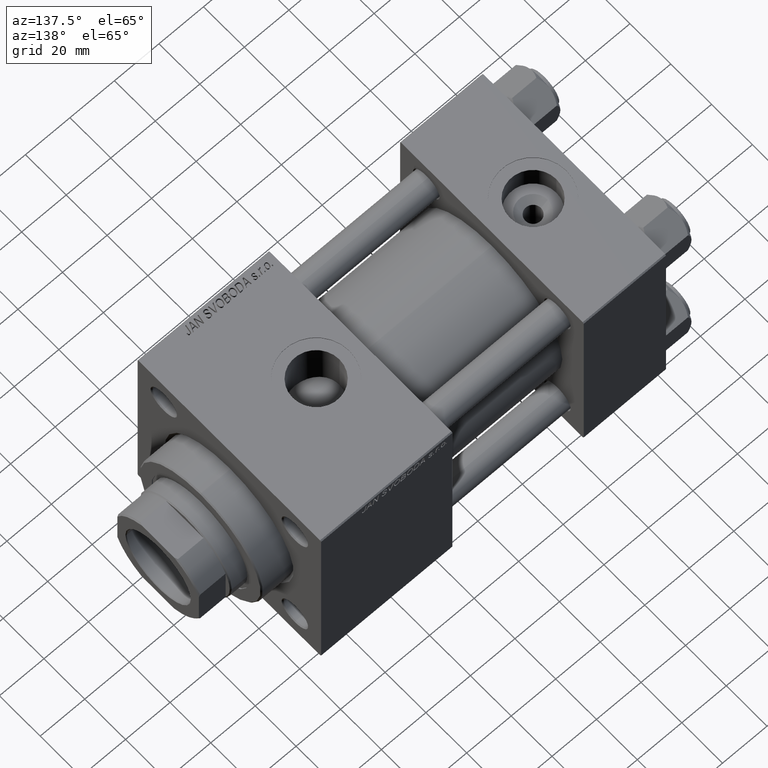
[diagram: clean part render]
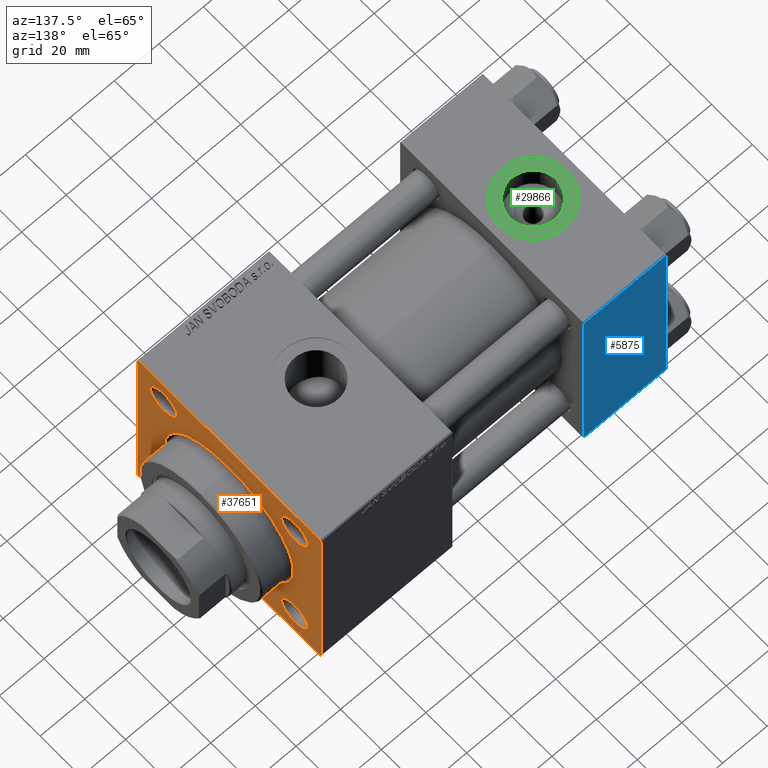
[diagram: same view with three faces highlighted in distinct colors, each labeled with its STEP entity id]
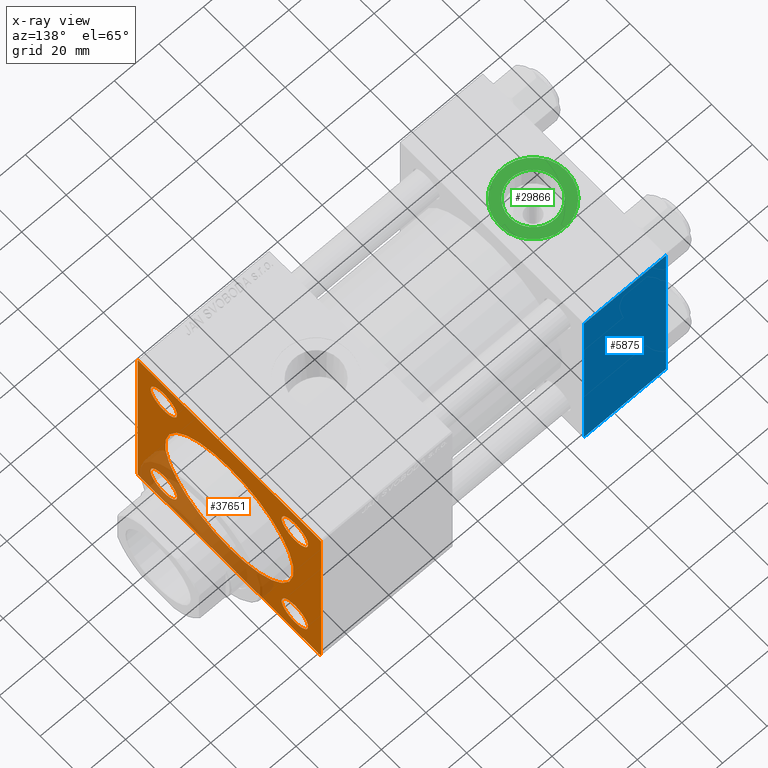
[diagram: x-ray of the same camera — body ghosted, the three highlighted faces saturated]
A machine part, auxiliary view with three faces highlighted in distinct colors.
The next image is the same camera in x-ray (body ghosted, the three faces saturated) — at least one of them is partly hidden behind the body in this view.
Their STEP definitions:

[orange] entity #37651 — the highlighted planar face has unit normal (-1, 0, 0).
#524 = VERTEX_POINT ( 'NONE', #20407 ) ;
#1508 = AXIS2_PLACEMENT_3D ( 'NONE', #2533, #30110, #5719 ) ;
#1572 = VECTOR ( 'NONE', #47039, 1000.000000000000114 ) ;
#1975 = DIRECTION ( 'NONE',  ( 0.000000000000000000, 0.000000000000000000, 1.000000000000000000 ) ) ;
#1985 = EDGE_CURVE ( 'NONE', #30434, #19574, #22128, .T. ) ;
#2533 = CARTESIAN_POINT ( 'NONE',  ( 155.0000000000000000, -32.14999999999999147, 32.14999999999999147 ) ) ;
#2999 = VERTEX_POINT ( 'NONE', #42919 ) ;
#3445 = VERTEX_POINT ( 'NONE', #41437 ) ;
#3578 = VERTEX_POINT ( 'NONE', #4168 ) ;
#3692 = CIRCLE ( 'NONE', #16276, 6.500000000000026645 ) ;
#3714 = EDGE_LOOP ( 'NONE', ( #12488, #46523 ) ) ;
#4168 = CARTESIAN_POINT ( 'NONE',  ( 155.0000000000000000, 44.49999999999998579, 45.00000000000000000 ) ) ;
#4630 = CARTESIAN_POINT ( 'NONE',  ( 155.0000000000000000, 32.14999999999999147, 32.15000000000000568 ) ) ;
#4785 = ORIENTED_EDGE ( 'NONE', *, *, #48766, .T. ) ;
#4864 = ORIENTED_EDGE ( 'NONE', *, *, #29685, .T. ) ;
#5298 = DIRECTION ( 'NONE',  ( 0.000000000000000000, -1.000000000000000000, 0.000000000000000000 ) ) ;
#5435 = AXIS2_PLACEMENT_3D ( 'NONE', #41424, #5501, #21494 ) ;
#5486 = DIRECTION ( 'NONE',  ( 0.000000000000000000, -1.000000000000000000, -1.541976423090495140E-16 ) ) ;
#5501 = DIRECTION ( 'NONE',  ( -1.000000000000000000, -0.000000000000000000, -0.000000000000000000 ) ) ;
#5719 = DIRECTION ( 'NONE',  ( 0.000000000000000000, 0.000000000000000000, 1.000000000000000000 ) ) ;
#6261 = CARTESIAN_POINT ( 'NONE',  ( 155.0000000000000000, 0.000000000000000000, -31.50000000000000000 ) ) ;
#6584 = CARTESIAN_POINT ( 'NONE',  ( 155.0000000000000000, 0.000000000000000000, 0.000000000000000000 ) ) ;
#6684 = ORIENTED_EDGE ( 'NONE', *, *, #50367, .T. ) ;
#7020 = LINE ( 'NONE', #19332, #33350 ) ;
#7304 = FACE_BOUND ( 'NONE', #3714, .T. ) ;
#7570 = PLANE ( 'NONE',  #23107 ) ;
#7697 = CARTESIAN_POINT ( 'NONE',  ( 155.0000000000000000, -32.14999999999999147, 25.64999999999995595 ) ) ;
#9075 = EDGE_CURVE ( 'NONE', #25834, #29998, #28676, .T. ) ;
#9602 = CARTESIAN_POINT ( 'NONE',  ( 155.0000000000000000, 32.14999999999999147, 32.15000000000000568 ) ) ;
#9913 = DIRECTION ( 'NONE',  ( 0.000000000000000000, 0.7071067811865524577, -0.7071067811865426878 ) ) ;
#10285 = CARTESIAN_POINT ( 'NONE',  ( 155.0000000000000000, -32.15000000000001279, -32.15000000000000568 ) ) ;
#10684 = DIRECTION ( 'NONE',  ( 0.000000000000000000, 0.000000000000000000, 1.000000000000000000 ) ) ;
#12183 = VERTEX_POINT ( 'NONE', #7697 ) ;
#12300 = ORIENTED_EDGE ( 'NONE', *, *, #34011, .T. ) ;
#12436 = LINE ( 'NONE', #24751, #46487 ) ;
#12467 = VECTOR ( 'NONE', #9913, 1000.000000000000000 ) ;
#12488 = ORIENTED_EDGE ( 'NONE', *, *, #40520, .T. ) ;
#13317 = ORIENTED_EDGE ( 'NONE', *, *, #38251, .F. ) ;
#13422 = CARTESIAN_POINT ( 'NONE',  ( 155.0000000000000000, 45.00000000000001421, -45.00000000000000000 ) ) ;
#13500 = DIRECTION ( 'NONE',  ( 0.000000000000000000, 0.000000000000000000, -1.000000000000000000 ) ) ;
#13641 = ORIENTED_EDGE ( 'NONE', *, *, #13814, .T. ) ;
#13814 = EDGE_CURVE ( 'NONE', #33957, #49076, #38903, .T. ) ;
#14200 = ORIENTED_EDGE ( 'NONE', *, *, #20519, .T. ) ;
#14408 = EDGE_LOOP ( 'NONE', ( #4864, #46954 ) ) ;
#14581 = EDGE_CURVE ( 'NONE', #34700, #31970, #32632, .T. ) ;
#14985 = ORIENTED_EDGE ( 'NONE', *, *, #14581, .T. ) ;
#15615 = AXIS2_PLACEMENT_3D ( 'NONE', #50217, #33729, #1975 ) ;
#16194 = VERTEX_POINT ( 'NONE', #35738 ) ;
#16276 = AXIS2_PLACEMENT_3D ( 'NONE', #9602, #37396, #17472 ) ;
#16338 = CARTESIAN_POINT ( 'NONE',  ( 155.0000000000000000, 45.00000000000001421, 44.49999999999997158 ) ) ;
#17039 = LINE ( 'NONE', #33033, #18112 ) ;
#17263 = CIRCLE ( 'NONE', #23101, 6.500000000000033751 ) ;
#17472 = DIRECTION ( 'NONE',  ( 0.000000000000000000, 0.000000000000000000, 1.000000000000000000 ) ) ;
#17790 = ORIENTED_EDGE ( 'NONE', *, *, #1985, .F. ) ;
#18112 = VECTOR ( 'NONE', #5486, 1000.000000000000000 ) ;
#18785 = CARTESIAN_POINT ( 'NONE',  ( 155.0000000000000000, 32.14999999999999147, -25.64999999999997016 ) ) ;
#18918 = CARTESIAN_POINT ( 'NONE',  ( 155.0000000000000000, -32.15000000000001279, -25.64999999999997016 ) ) ;
#18983 = CARTESIAN_POINT ( 'NONE',  ( 155.0000000000000000, -45.00000000000000000, 44.49999999999995737 ) ) ;
#19332 = CARTESIAN_POINT ( 'NONE',  ( 155.0000000000000000, 44.49999999999998579, 45.00000000000000000 ) ) ;
#19365 = DIRECTION ( 'NONE',  ( -0.000000000000000000, 0.000000000000000000, 1.000000000000000000 ) ) ;
#19446 = DIRECTION ( 'NONE',  ( 0.000000000000000000, 0.000000000000000000, 1.000000000000000000 ) ) ;
#19574 = VERTEX_POINT ( 'NONE', #32068 ) ;
#19641 = CIRCLE ( 'NONE', #40555, 31.50000000000000000 ) ;
#20049 = DIRECTION ( 'NONE',  ( -0.000000000000000000, 0.7071067811865474617, 0.7071067811865474617 ) ) ;
#20055 = CARTESIAN_POINT ( 'NONE',  ( 155.0000000000000000, -44.99999999999999289, -44.49999999999991473 ) ) ;
#20407 = CARTESIAN_POINT ( 'NONE',  ( 155.0000000000000000, -32.14999999999999147, 38.65000000000002700 ) ) ;
#20519 = EDGE_CURVE ( 'NONE', #2999, #42533, #34379, .T. ) ;
#21033 = VECTOR ( 'NONE', #13500, 1000.000000000000000 ) ;
#21494 = DIRECTION ( 'NONE',  ( 0.000000000000000000, 0.000000000000000000, 1.000000000000000000 ) ) ;
#22128 = LINE ( 'NONE', #33934, #21033 ) ;
#22872 = DIRECTION ( 'NONE',  ( 0.000000000000000000, 0.000000000000000000, 1.000000000000000000 ) ) ;
#23010 = VERTEX_POINT ( 'NONE', #40394 ) ;
#23064 = EDGE_LOOP ( 'NONE', ( #14200, #49602 ) ) ;
#23101 = AXIS2_PLACEMENT_3D ( 'NONE', #24351, #32235, #23577 ) ;
#23107 = AXIS2_PLACEMENT_3D ( 'NONE', #28027, #27769, #19365 ) ;
#23577 = DIRECTION ( 'NONE',  ( 0.000000000000000000, 0.000000000000000000, 1.000000000000000000 ) ) ;
#23820 = FACE_BOUND ( 'NONE', #26937, .T. ) ;
#23865 = AXIS2_PLACEMENT_3D ( 'NONE', #39100, #39891, #19446 ) ;
#24351 = CARTESIAN_POINT ( 'NONE',  ( 155.0000000000000000, 32.14999999999999147, -32.15000000000000568 ) ) ;
#24751 = CARTESIAN_POINT ( 'NONE',  ( 155.0000000000000000, 45.00000000000001421, -44.50000000000000000 ) ) ;
#24885 = ORIENTED_EDGE ( 'NONE', *, *, #51222, .T. ) ;
#24963 = CIRCLE ( 'NONE', #1508, 6.500000000000033751 ) ;
#25765 = CARTESIAN_POINT ( 'NONE',  ( 155.0000000000000000, -32.15000000000001279, -38.65000000000004832 ) ) ;
#25834 = VERTEX_POINT ( 'NONE', #33326 ) ;
#26188 = CARTESIAN_POINT ( 'NONE',  ( 155.0000000000000000, -45.00000000000000000, 44.99999999999998579 ) ) ;
#26937 = EDGE_LOOP ( 'NONE', ( #46966, #14985 ) ) ;
#27769 = DIRECTION ( 'NONE',  ( -1.000000000000000000, 0.000000000000000000, -0.000000000000000000 ) ) ;
#28027 = CARTESIAN_POINT ( 'NONE',  ( 155.0000000000000000, 0.000000000000000000, 0.000000000000000000 ) ) ;
#28498 = EDGE_LOOP ( 'NONE', ( #24885, #6684, #13317, #47143, #17790, #4785, #30076, #13641 ) ) ;
#28676 = CIRCLE ( 'NONE', #29526, 31.50000000000000000 ) ;
#29185 = EDGE_CURVE ( 'NONE', #42533, #2999, #3692, .T. ) ;
#29526 = AXIS2_PLACEMENT_3D ( 'NONE', #46344, #42414, #10684 ) ;
#29685 = EDGE_CURVE ( 'NONE', #29998, #25834, #19641, .T. ) ;
#29998 = VERTEX_POINT ( 'NONE', #6261 ) ;
#30076 = ORIENTED_EDGE ( 'NONE', *, *, #40983, .T. ) ;
#30110 = DIRECTION ( 'NONE',  ( -1.000000000000000000, -0.000000000000000000, -0.000000000000000000 ) ) ;
#30434 = VERTEX_POINT ( 'NONE', #16338 ) ;
#31970 = VERTEX_POINT ( 'NONE', #25765 ) ;
#32068 = CARTESIAN_POINT ( 'NONE',  ( 155.0000000000000000, 45.00000000000001421, -44.49999999999997158 ) ) ;
#32221 = FACE_BOUND ( 'NONE', #23064, .T. ) ;
#32235 = DIRECTION ( 'NONE',  ( -1.000000000000000000, -0.000000000000000000, -0.000000000000000000 ) ) ;
#32632 = CIRCLE ( 'NONE', #36001, 6.500000000000033751 ) ;
#32682 = EDGE_CURVE ( 'NONE', #16194, #19574, #12436, .T. ) ;
#33033 = CARTESIAN_POINT ( 'NONE',  ( 155.0000000000000000, 45.00000000000001421, 45.00000000000000000 ) ) ;
#33326 = CARTESIAN_POINT ( 'NONE',  ( 155.0000000000000000, 3.857637417314162689E-15, 31.50000000000000000 ) ) ;
#33350 = VECTOR ( 'NONE', #35336, 1000.000000000000114 ) ;
#33729 = DIRECTION ( 'NONE',  ( -1.000000000000000000, -0.000000000000000000, -0.000000000000000000 ) ) ;
#33934 = CARTESIAN_POINT ( 'NONE',  ( 155.0000000000000000, 45.00000000000001421, 45.00000000000000000 ) ) ;
#33957 = VERTEX_POINT ( 'NONE', #49798 ) ;
#34011 = EDGE_CURVE ( 'NONE', #39158, #23010, #44886, .T. ) ;
#34036 = LINE ( 'NONE', #50016, #12467 ) ;
#34379 = CIRCLE ( 'NONE', #51214, 6.500000000000026645 ) ;
#34700 = VERTEX_POINT ( 'NONE', #18918 ) ;
#34738 = EDGE_CURVE ( 'NONE', #31970, #34700, #41439, .T. ) ;
#35336 = DIRECTION ( 'NONE',  ( 0.000000000000000000, -0.7071067811865474617, 0.7071067811865474617 ) ) ;
#35616 = FACE_BOUND ( 'NONE', #14408, .T. ) ;
#35738 = CARTESIAN_POINT ( 'NONE',  ( 155.0000000000000000, 44.50000000000001421, -45.00000000000000000 ) ) ;
#36001 = AXIS2_PLACEMENT_3D ( 'NONE', #10285, #46721, #22872 ) ;
#36119 = DIRECTION ( 'NONE',  ( 0.000000000000000000, 0.000000000000000000, 1.000000000000000000 ) ) ;
#37309 = VECTOR ( 'NONE', #5298, 1000.000000000000000 ) ;
#37396 = DIRECTION ( 'NONE',  ( -1.000000000000000000, -0.000000000000000000, -0.000000000000000000 ) ) ;
#37651 = ADVANCED_FACE ( 'NONE', ( #32221, #7304, #23820, #39555, #35616, #44003 ), #7570, .F. ) ;
#38194 = CIRCLE ( 'NONE', #15615, 6.500000000000033751 ) ;
#38251 = EDGE_CURVE ( 'NONE', #16194, #3445, #49075, .T. ) ;
#38310 = ORIENTED_EDGE ( 'NONE', *, *, #39754, .T. ) ;
#38903 = LINE ( 'NONE', #18983, #1572 ) ;
#39100 = CARTESIAN_POINT ( 'NONE',  ( 155.0000000000000000, -32.15000000000001279, -32.15000000000000568 ) ) ;
#39158 = VERTEX_POINT ( 'NONE', #18785 ) ;
#39555 = FACE_BOUND ( 'NONE', #39970, .T. ) ;
#39754 = EDGE_CURVE ( 'NONE', #23010, #39158, #17263, .T. ) ;
#39891 = DIRECTION ( 'NONE',  ( -1.000000000000000000, -0.000000000000000000, -0.000000000000000000 ) ) ;
#39970 = EDGE_LOOP ( 'NONE', ( #38310, #12300 ) ) ;
#40394 = CARTESIAN_POINT ( 'NONE',  ( 155.0000000000000000, 32.14999999999999147, -38.65000000000004832 ) ) ;
#40520 = EDGE_CURVE ( 'NONE', #12183, #524, #38194, .T. ) ;
#40555 = AXIS2_PLACEMENT_3D ( 'NONE', #6584, #46174, #43813 ) ;
#40983 = EDGE_CURVE ( 'NONE', #3578, #33957, #17039, .T. ) ;
#41424 = CARTESIAN_POINT ( 'NONE',  ( 155.0000000000000000, 32.14999999999999147, -32.15000000000000568 ) ) ;
#41437 = CARTESIAN_POINT ( 'NONE',  ( 155.0000000000000000, -44.49999999999990052, -45.00000000000000000 ) ) ;
#41439 = CIRCLE ( 'NONE', #23865, 6.500000000000033751 ) ;
#42172 = DIRECTION ( 'NONE',  ( 0.000000000000000000, 7.709882115452478166E-17, -1.000000000000000000 ) ) ;
#42414 = DIRECTION ( 'NONE',  ( -1.000000000000000000, -0.000000000000000000, -0.000000000000000000 ) ) ;
#42533 = VERTEX_POINT ( 'NONE', #49050 ) ;
#42919 = CARTESIAN_POINT ( 'NONE',  ( 155.0000000000000000, 32.14999999999999147, 25.64999999999997726 ) ) ;
#43813 = DIRECTION ( 'NONE',  ( 0.000000000000000000, 0.000000000000000000, 1.000000000000000000 ) ) ;
#44003 = FACE_OUTER_BOUND ( 'NONE', #28498, .T. ) ;
#44886 = CIRCLE ( 'NONE', #5435, 6.500000000000033751 ) ;
#45586 = LINE ( 'NONE', #26188, #50963 ) ;
#45701 = DIRECTION ( 'NONE',  ( -1.000000000000000000, -0.000000000000000000, -0.000000000000000000 ) ) ;
#46174 = DIRECTION ( 'NONE',  ( -1.000000000000000000, -0.000000000000000000, -0.000000000000000000 ) ) ;
#46344 = CARTESIAN_POINT ( 'NONE',  ( 155.0000000000000000, 0.000000000000000000, 0.000000000000000000 ) ) ;
#46487 = VECTOR ( 'NONE', #20049, 1000.000000000000114 ) ;
#46523 = ORIENTED_EDGE ( 'NONE', *, *, #48675, .T. ) ;
#46721 = DIRECTION ( 'NONE',  ( -1.000000000000000000, -0.000000000000000000, -0.000000000000000000 ) ) ;
#46954 = ORIENTED_EDGE ( 'NONE', *, *, #9075, .T. ) ;
#46966 = ORIENTED_EDGE ( 'NONE', *, *, #34738, .T. ) ;
#47039 = DIRECTION ( 'NONE',  ( -0.000000000000000000, -0.7071067811865474617, -0.7071067811865474617 ) ) ;
#47061 = CARTESIAN_POINT ( 'NONE',  ( 155.0000000000000000, -45.00000000000000000, 44.49999999999995737 ) ) ;
#47143 = ORIENTED_EDGE ( 'NONE', *, *, #32682, .T. ) ;
#48675 = EDGE_CURVE ( 'NONE', #524, #12183, #24963, .T. ) ;
#48766 = EDGE_CURVE ( 'NONE', #30434, #3578, #7020, .T. ) ;
#49050 = CARTESIAN_POINT ( 'NONE',  ( 155.0000000000000000, 32.14999999999999147, 38.65000000000003411 ) ) ;
#49075 = LINE ( 'NONE', #13422, #37309 ) ;
#49076 = VERTEX_POINT ( 'NONE', #47061 ) ;
#49162 = VERTEX_POINT ( 'NONE', #20055 ) ;
#49602 = ORIENTED_EDGE ( 'NONE', *, *, #29185, .T. ) ;
#49798 = CARTESIAN_POINT ( 'NONE',  ( 155.0000000000000000, -44.49999999999994316, 44.99999999999998579 ) ) ;
#50016 = CARTESIAN_POINT ( 'NONE',  ( 155.0000000000000000, -44.49999999999992895, -45.00000000000000000 ) ) ;
#50217 = CARTESIAN_POINT ( 'NONE',  ( 155.0000000000000000, -32.14999999999999147, 32.14999999999999147 ) ) ;
#50367 = EDGE_CURVE ( 'NONE', #49162, #3445, #34036, .T. ) ;
#50963 = VECTOR ( 'NONE', #42172, 1000.000000000000000 ) ;
#51214 = AXIS2_PLACEMENT_3D ( 'NONE', #4630, #45701, #36119 ) ;
#51222 = EDGE_CURVE ( 'NONE', #49076, #49162, #45586, .T. ) ;

[blue] entity #5875 — the highlighted planar face has unit normal (0, 1, 0).
#129 = VECTOR ( 'NONE', #9888, 1000.000000000000000 ) ;
#962 = PLANE ( 'NONE',  #33711 ) ;
#967 = EDGE_CURVE ( 'NONE', #40320, #15278, #44954, .T. ) ;
#1717 = CARTESIAN_POINT ( 'NONE',  ( 0.000000000000000000, 44.99999999999998579, -44.49999999999995737 ) ) ;
#3313 = CARTESIAN_POINT ( 'NONE',  ( 0.000000000000000000, 44.99999999999998579, 45.00000000000001421 ) ) ;
#3405 = ORIENTED_EDGE ( 'NONE', *, *, #967, .T. ) ;
#5875 = ADVANCED_FACE ( 'NONE', ( #24848 ), #962, .T. ) ;
#6883 = ORIENTED_EDGE ( 'NONE', *, *, #32307, .T. ) ;
#7259 = DIRECTION ( 'NONE',  ( 0.000000000000000000, 0.000000000000000000, -1.000000000000000000 ) ) ;
#7288 = CARTESIAN_POINT ( 'NONE',  ( 0.000000000000000000, 44.99999999999998579, 44.50000000000001421 ) ) ;
#7383 = EDGE_CURVE ( 'NONE', #15278, #28870, #25380, .T. ) ;
#7554 = EDGE_CURVE ( 'NONE', #40320, #27254, #23511, .T. ) ;
#9016 = CARTESIAN_POINT ( 'NONE',  ( 37.00000000000000000, 44.99999999999998579, 44.50000000000001421 ) ) ;
#9369 = CARTESIAN_POINT ( 'NONE',  ( 37.00000000000000000, 44.99999999999998579, 45.00000000000001421 ) ) ;
#9888 = DIRECTION ( 'NONE',  ( 0.000000000000000000, 0.000000000000000000, -1.000000000000000000 ) ) ;
#11793 = VECTOR ( 'NONE', #16653, 1000.000000000000000 ) ;
#14430 = CARTESIAN_POINT ( 'NONE',  ( 37.00000000000000000, 44.99999999999998579, -44.49999999999998579 ) ) ;
#15278 = VERTEX_POINT ( 'NONE', #9016 ) ;
#16653 = DIRECTION ( 'NONE',  ( 1.000000000000000000, 0.000000000000000000, 0.000000000000000000 ) ) ;
#20590 = CARTESIAN_POINT ( 'NONE',  ( 37.00000000000000000, 44.99999999999998579, 44.50000000000001421 ) ) ;
#21678 = DIRECTION ( 'NONE',  ( 0.000000000000000000, -0.000000000000000000, 1.000000000000000000 ) ) ;
#23511 = LINE ( 'NONE', #3313, #47036 ) ;
#24848 = FACE_OUTER_BOUND ( 'NONE', #37795, .T. ) ;
#25380 = LINE ( 'NONE', #49742, #129 ) ;
#26490 = DIRECTION ( 'NONE',  ( -1.000000000000000000, 0.000000000000000000, 0.000000000000000000 ) ) ;
#27254 = VERTEX_POINT ( 'NONE', #1717 ) ;
#28870 = VERTEX_POINT ( 'NONE', #40181 ) ;
#30172 = LINE ( 'NONE', #14430, #42296 ) ;
#31828 = ORIENTED_EDGE ( 'NONE', *, *, #7554, .F. ) ;
#32307 = EDGE_CURVE ( 'NONE', #28870, #27254, #30172, .T. ) ;
#33711 = AXIS2_PLACEMENT_3D ( 'NONE', #9369, #49979, #21678 ) ;
#37795 = EDGE_LOOP ( 'NONE', ( #47374, #6883, #31828, #3405 ) ) ;
#40181 = CARTESIAN_POINT ( 'NONE',  ( 37.00000000000000000, 44.99999999999998579, -44.49999999999995737 ) ) ;
#40320 = VERTEX_POINT ( 'NONE', #7288 ) ;
#42296 = VECTOR ( 'NONE', #26490, 1000.000000000000000 ) ;
#44954 = LINE ( 'NONE', #20590, #11793 ) ;
#47036 = VECTOR ( 'NONE', #7259, 1000.000000000000000 ) ;
#47374 = ORIENTED_EDGE ( 'NONE', *, *, #7383, .T. ) ;
#49742 = CARTESIAN_POINT ( 'NONE',  ( 37.00000000000000000, 44.99999999999998579, 45.00000000000001421 ) ) ;
#49979 = DIRECTION ( 'NONE',  ( -0.000000000000000000, 1.000000000000000000, 0.000000000000000000 ) ) ;

[green] entity #29866 — the highlighted planar face has unit normal (0, 0, 1).
#545 = AXIS2_PLACEMENT_3D ( 'NONE', #10838, #26841, #50683 ) ;
#679 = AXIS2_PLACEMENT_3D ( 'NONE', #50434, #30270, #3495 ) ;
#2711 = DIRECTION ( 'NONE',  ( 0.000000000000000000, 0.000000000000000000, 1.000000000000000000 ) ) ;
#3495 = DIRECTION ( 'NONE',  ( 1.000000000000000000, 0.000000000000000000, 0.000000000000000000 ) ) ;
#5887 = EDGE_LOOP ( 'NONE', ( #22993, #32345 ) ) ;
#6141 = DIRECTION ( 'NONE',  ( 1.000000000000000000, 0.000000000000000000, 0.000000000000000000 ) ) ;
#6322 = CARTESIAN_POINT ( 'NONE',  ( 3.499999999999997780, -6.836647181163008250E-15, 44.80000000000000426 ) ) ;
#6585 = AXIS2_PLACEMENT_3D ( 'NONE', #38874, #43861, #34950 ) ;
#7017 = EDGE_CURVE ( 'NONE', #19841, #38446, #22703, .T. ) ;
#10838 = CARTESIAN_POINT ( 'NONE',  ( 18.50000000000000000, -8.673617379884038628E-15, 44.80000000000000426 ) ) ;
#11125 = CARTESIAN_POINT ( 'NONE',  ( 18.50000000000000000, -8.673617379884038628E-15, 44.80000000000000426 ) ) ;
#12023 = EDGE_CURVE ( 'NONE', #48926, #28726, #28351, .T. ) ;
#13365 = FACE_BOUND ( 'NONE', #5887, .T. ) ;
#16529 = CARTESIAN_POINT ( 'NONE',  ( 18.50000000000000000, -8.673617379884038628E-15, 44.80000000000000426 ) ) ;
#17551 = DIRECTION ( 'NONE',  ( 1.000000000000000000, 0.000000000000000000, -0.000000000000000000 ) ) ;
#17963 = CARTESIAN_POINT ( 'NONE',  ( 8.019999999999999574, -7.390187534377611561E-15, 44.80000000000000426 ) ) ;
#19841 = VERTEX_POINT ( 'NONE', #25257 ) ;
#20721 = PLANE ( 'NONE',  #22122 ) ;
#21881 = AXIS2_PLACEMENT_3D ( 'NONE', #11125, #2711, #6141 ) ;
#22122 = AXIS2_PLACEMENT_3D ( 'NONE', #16529, #49538, #17551 ) ;
#22703 = CIRCLE ( 'NONE', #21881, 15.00000000000000355 ) ;
#22993 = ORIENTED_EDGE ( 'NONE', *, *, #50046, .F. ) ;
#25257 = CARTESIAN_POINT ( 'NONE',  ( 33.50000000000000000, -8.673617379884038628E-15, 44.80000000000000426 ) ) ;
#26841 = DIRECTION ( 'NONE',  ( 0.000000000000000000, 0.000000000000000000, 1.000000000000000000 ) ) ;
#28351 = CIRCLE ( 'NONE', #679, 10.48000000000000043 ) ;
#28726 = VERTEX_POINT ( 'NONE', #32894 ) ;
#29571 = EDGE_LOOP ( 'NONE', ( #41571, #44561 ) ) ;
#29866 = ADVANCED_FACE ( 'NONE', ( #13365, #40904 ), #20721, .T. ) ;
#30270 = DIRECTION ( 'NONE',  ( 0.000000000000000000, 0.000000000000000000, 1.000000000000000000 ) ) ;
#32345 = ORIENTED_EDGE ( 'NONE', *, *, #12023, .F. ) ;
#32894 = CARTESIAN_POINT ( 'NONE',  ( 28.98000000000000043, -8.673617379884038628E-15, 44.80000000000000426 ) ) ;
#33381 = CIRCLE ( 'NONE', #6585, 10.48000000000000043 ) ;
#34950 = DIRECTION ( 'NONE',  ( 1.000000000000000000, 0.000000000000000000, 0.000000000000000000 ) ) ;
#37426 = CIRCLE ( 'NONE', #545, 15.00000000000000355 ) ;
#38446 = VERTEX_POINT ( 'NONE', #6322 ) ;
#38874 = CARTESIAN_POINT ( 'NONE',  ( 18.50000000000000000, -8.673617379884038628E-15, 44.80000000000000426 ) ) ;
#40904 = FACE_OUTER_BOUND ( 'NONE', #29571, .T. ) ;
#41571 = ORIENTED_EDGE ( 'NONE', *, *, #7017, .T. ) ;
#41696 = EDGE_CURVE ( 'NONE', #38446, #19841, #37426, .T. ) ;
#43861 = DIRECTION ( 'NONE',  ( 0.000000000000000000, 0.000000000000000000, 1.000000000000000000 ) ) ;
#44561 = ORIENTED_EDGE ( 'NONE', *, *, #41696, .T. ) ;
#48926 = VERTEX_POINT ( 'NONE', #17963 ) ;
#49538 = DIRECTION ( 'NONE',  ( 0.000000000000000000, 0.000000000000000000, 1.000000000000000000 ) ) ;
#50046 = EDGE_CURVE ( 'NONE', #28726, #48926, #33381, .T. ) ;
#50434 = CARTESIAN_POINT ( 'NONE',  ( 18.50000000000000000, -8.673617379884038628E-15, 44.80000000000000426 ) ) ;
#50683 = DIRECTION ( 'NONE',  ( 1.000000000000000000, 0.000000000000000000, 0.000000000000000000 ) ) ;